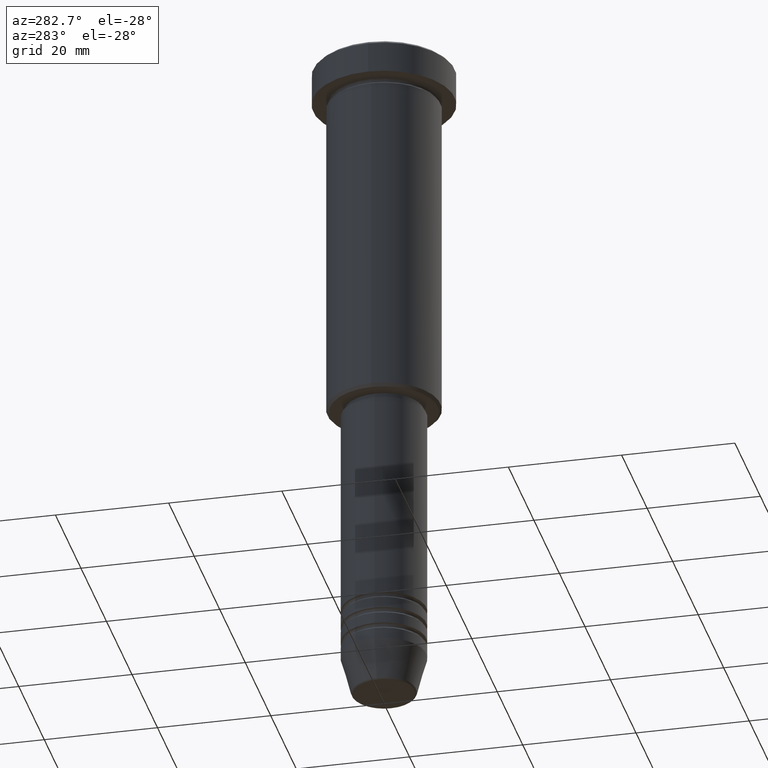
[diagram: clean part render]
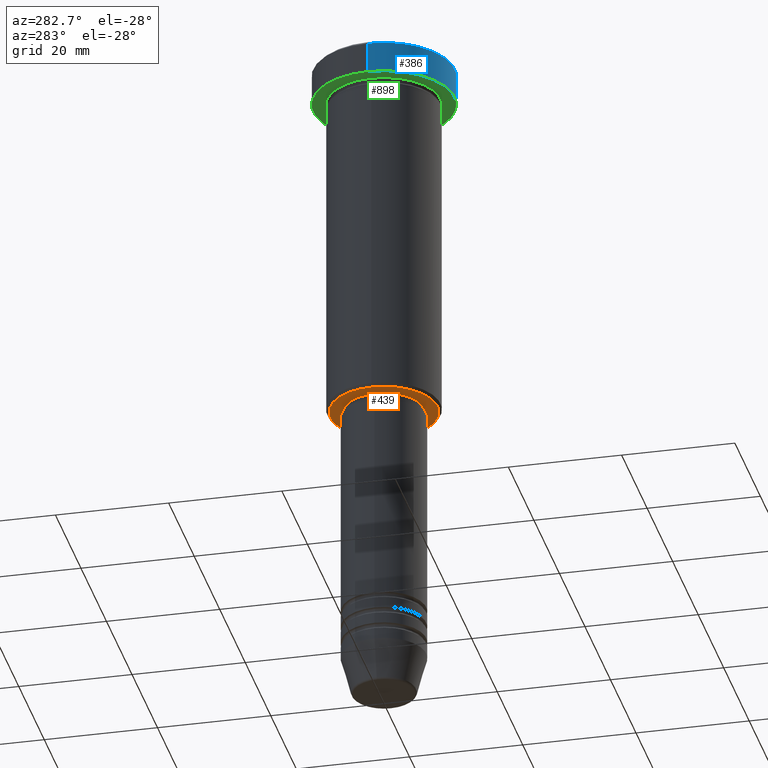
[diagram: same view with three faces highlighted in distinct colors, each labeled with its STEP entity id]
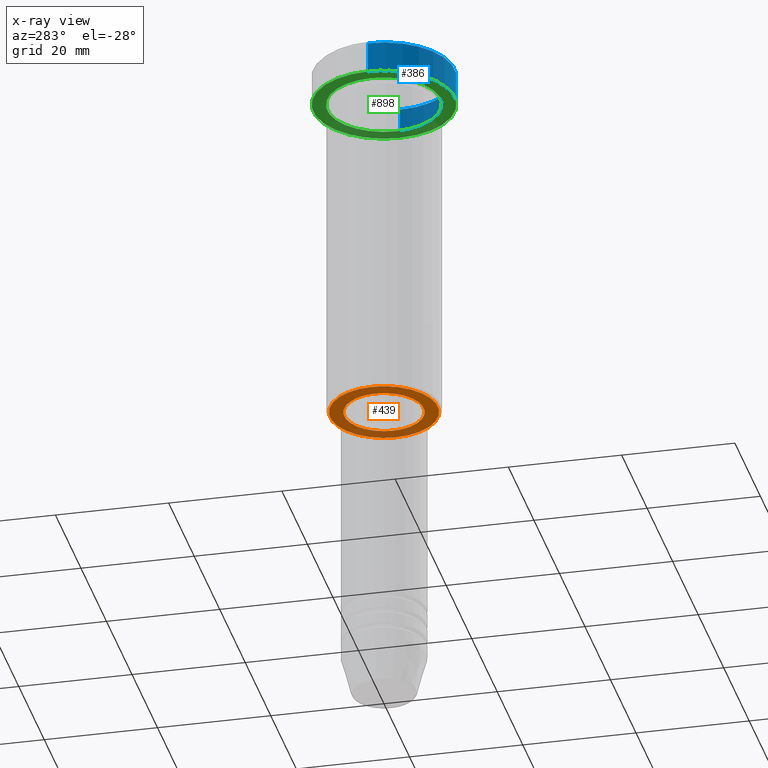
[diagram: x-ray of the same camera — body ghosted, the three highlighted faces saturated]
A machine part, auxiliary view with three faces highlighted in distinct colors.
The next image is the same camera in x-ray (body ghosted, the three faces saturated) — at least one of them is partly hidden behind the body in this view.
Their STEP definitions:

[orange] entity #439 — the highlighted planar face has unit normal (0, 0, -1).
#15 = CARTESIAN_POINT ( 'NONE',  ( 0.000000000000000000, 0.000000000000000000, -66.00000000000000000 ) ) ;
#64 = VERTEX_POINT ( 'NONE', #801 ) ;
#66 = CIRCLE ( 'NONE', #398, 9.499999999999980460 ) ;
#92 = PLANE ( 'NONE',  #177 ) ;
#118 = CARTESIAN_POINT ( 'NONE',  ( 0.000000000000000000, 0.000000000000000000, -66.00000000000000000 ) ) ;
#120 = AXIS2_PLACEMENT_3D ( 'NONE', #15, #741, #1107 ) ;
#141 = CIRCLE ( 'NONE', #525, 6.999999999999999112 ) ;
#177 = AXIS2_PLACEMENT_3D ( 'NONE', #740, #836, #372 ) ;
#180 = DIRECTION ( 'NONE',  ( 1.000000000000000000, 0.000000000000000000, 0.000000000000000000 ) ) ;
#272 = CARTESIAN_POINT ( 'NONE',  ( 0.000000000000000000, 0.000000000000000000, -66.00000000000000000 ) ) ;
#303 = EDGE_CURVE ( 'NONE', #1123, #64, #445, .T. ) ;
#323 = DIRECTION ( 'NONE',  ( 1.000000000000000000, 0.000000000000000000, 0.000000000000000000 ) ) ;
#325 = VERTEX_POINT ( 'NONE', #818 ) ;
#340 = EDGE_LOOP ( 'NONE', ( #497, #586 ) ) ;
#372 = DIRECTION ( 'NONE',  ( -1.000000000000000000, 0.000000000000000000, -0.000000000000000000 ) ) ;
#398 = AXIS2_PLACEMENT_3D ( 'NONE', #992, #1065, #973 ) ;
#439 = ADVANCED_FACE ( 'NONE', ( #461, #451 ), #92, .T. ) ;
#445 = CIRCLE ( 'NONE', #120, 9.499999999999980460 ) ;
#451 = FACE_BOUND ( 'NONE', #340, .T. ) ;
#461 = FACE_OUTER_BOUND ( 'NONE', #592, .T. ) ;
#491 = CIRCLE ( 'NONE', #1170, 6.999999999999999112 ) ;
#497 = ORIENTED_EDGE ( 'NONE', *, *, #529, .T. ) ;
#525 = AXIS2_PLACEMENT_3D ( 'NONE', #118, #1025, #323 ) ;
#529 = EDGE_CURVE ( 'NONE', #325, #761, #491, .T. ) ;
#586 = ORIENTED_EDGE ( 'NONE', *, *, #988, .T. ) ;
#592 = EDGE_LOOP ( 'NONE', ( #742, #694 ) ) ;
#619 = CARTESIAN_POINT ( 'NONE',  ( -6.999999999999999112, 8.572527594031472204E-16, -66.00000000000000000 ) ) ;
#626 = CARTESIAN_POINT ( 'NONE',  ( 9.499999999999980460, 0.000000000000000000, -66.00000000000000000 ) ) ;
#633 = DIRECTION ( 'NONE',  ( -0.000000000000000000, -0.000000000000000000, 1.000000000000000000 ) ) ;
#694 = ORIENTED_EDGE ( 'NONE', *, *, #1161, .T. ) ;
#740 = CARTESIAN_POINT ( 'NONE',  ( 0.000000000000000000, 10.00000000000000000, -66.00000000000000000 ) ) ;
#741 = DIRECTION ( 'NONE',  ( 0.000000000000000000, 0.000000000000000000, -1.000000000000000000 ) ) ;
#742 = ORIENTED_EDGE ( 'NONE', *, *, #303, .T. ) ;
#761 = VERTEX_POINT ( 'NONE', #619 ) ;
#801 = CARTESIAN_POINT ( 'NONE',  ( -9.499999999999980460, 1.194030629168668286E-15, -66.00000000000000000 ) ) ;
#818 = CARTESIAN_POINT ( 'NONE',  ( 6.999999999999999112, 0.000000000000000000, -66.00000000000000000 ) ) ;
#836 = DIRECTION ( 'NONE',  ( 0.000000000000000000, 0.000000000000000000, -1.000000000000000000 ) ) ;
#973 = DIRECTION ( 'NONE',  ( -1.000000000000000000, 0.000000000000000000, 0.000000000000000000 ) ) ;
#988 = EDGE_CURVE ( 'NONE', #761, #325, #141, .T. ) ;
#992 = CARTESIAN_POINT ( 'NONE',  ( 0.000000000000000000, 0.000000000000000000, -66.00000000000000000 ) ) ;
#1025 = DIRECTION ( 'NONE',  ( -0.000000000000000000, -0.000000000000000000, 1.000000000000000000 ) ) ;
#1065 = DIRECTION ( 'NONE',  ( 0.000000000000000000, 0.000000000000000000, -1.000000000000000000 ) ) ;
#1107 = DIRECTION ( 'NONE',  ( -1.000000000000000000, 0.000000000000000000, 0.000000000000000000 ) ) ;
#1123 = VERTEX_POINT ( 'NONE', #626 ) ;
#1161 = EDGE_CURVE ( 'NONE', #64, #1123, #66, .T. ) ;
#1170 = AXIS2_PLACEMENT_3D ( 'NONE', #272, #633, #180 ) ;

[blue] entity #386 — the highlighted cylindrical surface (partial cylindrical patch) has radius 12.5 mm, axis along (-0, -0, 1).
#5 = CARTESIAN_POINT ( 'NONE',  ( -12.50000000000000000, 1.530808498934191521E-15, -0.5000000000000056621 ) ) ;
#13 = DIRECTION ( 'NONE',  ( -0.000000000000000000, -0.000000000000000000, 1.000000000000000000 ) ) ;
#32 = LINE ( 'NONE', #867, #449 ) ;
#112 = CARTESIAN_POINT ( 'NONE',  ( 0.000000000000000000, 0.000000000000000000, -5.999999999999996447 ) ) ;
#156 = DIRECTION ( 'NONE',  ( -0.000000000000000000, -0.000000000000000000, 1.000000000000000000 ) ) ;
#231 = CARTESIAN_POINT ( 'NONE',  ( 12.50000000000000000, 0.000000000000000000, -5.999999999999996447 ) ) ;
#234 = CYLINDRICAL_SURFACE ( 'NONE', #653, 12.50000000000000000 ) ;
#273 = EDGE_CURVE ( 'NONE', #1121, #565, #731, .T. ) ;
#306 = DIRECTION ( 'NONE',  ( 1.000000000000000000, 0.000000000000000000, 0.000000000000000000 ) ) ;
#310 = EDGE_CURVE ( 'NONE', #565, #837, #981, .T. ) ;
#317 = EDGE_LOOP ( 'NONE', ( #647, #534, #518, #606 ) ) ;
#337 = AXIS2_PLACEMENT_3D ( 'NONE', #417, #1142, #409 ) ;
#386 = ADVANCED_FACE ( 'NONE', ( #706 ), #234, .T. ) ;
#409 = DIRECTION ( 'NONE',  ( 1.000000000000000000, 0.000000000000000000, 0.000000000000000000 ) ) ;
#417 = CARTESIAN_POINT ( 'NONE',  ( 0.000000000000000000, 0.000000000000000000, -0.5000000000000056621 ) ) ;
#449 = VECTOR ( 'NONE', #588, 1000.000000000000000 ) ;
#486 = DIRECTION ( 'NONE',  ( -0.000000000000000000, -0.000000000000000000, 1.000000000000000000 ) ) ;
#518 = ORIENTED_EDGE ( 'NONE', *, *, #310, .T. ) ;
#534 = ORIENTED_EDGE ( 'NONE', *, *, #273, .T. ) ;
#565 = VERTEX_POINT ( 'NONE', #231 ) ;
#588 = DIRECTION ( 'NONE',  ( -0.000000000000000000, -0.000000000000000000, 1.000000000000000000 ) ) ;
#606 = ORIENTED_EDGE ( 'NONE', *, *, #664, .T. ) ;
#620 = AXIS2_PLACEMENT_3D ( 'NONE', #112, #486, #306 ) ;
#634 = CARTESIAN_POINT ( 'NONE',  ( 0.000000000000000000, 0.000000000000000000, 0.000000000000000000 ) ) ;
#647 = ORIENTED_EDGE ( 'NONE', *, *, #1070, .F. ) ;
#653 = AXIS2_PLACEMENT_3D ( 'NONE', #634, #13, #658 ) ;
#658 = DIRECTION ( 'NONE',  ( 1.000000000000000000, 0.000000000000000000, 0.000000000000000000 ) ) ;
#664 = EDGE_CURVE ( 'NONE', #837, #918, #844, .T. ) ;
#703 = CARTESIAN_POINT ( 'NONE',  ( -12.50000000000000000, 1.530808498934191521E-15, -5.999999999999996447 ) ) ;
#706 = FACE_OUTER_BOUND ( 'NONE', #317, .T. ) ;
#731 = CIRCLE ( 'NONE', #620, 12.50000000000000000 ) ;
#837 = VERTEX_POINT ( 'NONE', #1159 ) ;
#844 = CIRCLE ( 'NONE', #337, 12.50000000000000000 ) ;
#867 = CARTESIAN_POINT ( 'NONE',  ( -12.50000000000000000, 1.530808498934191521E-15, 0.000000000000000000 ) ) ;
#918 = VERTEX_POINT ( 'NONE', #5 ) ;
#958 = CARTESIAN_POINT ( 'NONE',  ( 12.50000000000000000, 0.000000000000000000, 0.000000000000000000 ) ) ;
#981 = LINE ( 'NONE', #958, #1092 ) ;
#1070 = EDGE_CURVE ( 'NONE', #1121, #918, #32, .T. ) ;
#1092 = VECTOR ( 'NONE', #156, 1000.000000000000000 ) ;
#1121 = VERTEX_POINT ( 'NONE', #703 ) ;
#1142 = DIRECTION ( 'NONE',  ( 0.000000000000000000, 0.000000000000000000, -1.000000000000000000 ) ) ;
#1159 = CARTESIAN_POINT ( 'NONE',  ( 12.50000000000000000, 0.000000000000000000, -0.5000000000000056621 ) ) ;

[green] entity #898 — the highlighted planar face has unit normal (0, 0, -1).
#112 = CARTESIAN_POINT ( 'NONE',  ( 0.000000000000000000, 0.000000000000000000, -5.999999999999996447 ) ) ;
#126 = EDGE_LOOP ( 'NONE', ( #382, #991 ) ) ;
#187 = VERTEX_POINT ( 'NONE', #1068 ) ;
#215 = CARTESIAN_POINT ( 'NONE',  ( 0.000000000000000000, 0.000000000000000000, -5.999999999999996447 ) ) ;
#231 = CARTESIAN_POINT ( 'NONE',  ( 12.50000000000000000, 0.000000000000000000, -5.999999999999996447 ) ) ;
#273 = EDGE_CURVE ( 'NONE', #1121, #565, #731, .T. ) ;
#289 = CARTESIAN_POINT ( 'NONE',  ( 0.000000000000000000, 12.50000000000000000, -5.999999999999996447 ) ) ;
#293 = CARTESIAN_POINT ( 'NONE',  ( 0.000000000000000000, 0.000000000000000000, -5.999999999999996447 ) ) ;
#306 = DIRECTION ( 'NONE',  ( 1.000000000000000000, 0.000000000000000000, 0.000000000000000000 ) ) ;
#312 = DIRECTION ( 'NONE',  ( -1.000000000000000000, 0.000000000000000000, 0.000000000000000000 ) ) ;
#382 = ORIENTED_EDGE ( 'NONE', *, *, #1006, .T. ) ;
#400 = DIRECTION ( 'NONE',  ( -0.000000000000000000, -0.000000000000000000, 1.000000000000000000 ) ) ;
#446 = EDGE_LOOP ( 'NONE', ( #995, #1024 ) ) ;
#477 = FACE_OUTER_BOUND ( 'NONE', #446, .T. ) ;
#486 = DIRECTION ( 'NONE',  ( -0.000000000000000000, -0.000000000000000000, 1.000000000000000000 ) ) ;
#536 = PLANE ( 'NONE',  #657 ) ;
#565 = VERTEX_POINT ( 'NONE', #231 ) ;
#572 = DIRECTION ( 'NONE',  ( 1.000000000000000000, 0.000000000000000000, 0.000000000000000000 ) ) ;
#620 = AXIS2_PLACEMENT_3D ( 'NONE', #112, #486, #306 ) ;
#643 = EDGE_CURVE ( 'NONE', #565, #1121, #1080, .T. ) ;
#645 = DIRECTION ( 'NONE',  ( -1.000000000000000000, 0.000000000000000000, 0.000000000000000000 ) ) ;
#657 = AXIS2_PLACEMENT_3D ( 'NONE', #289, #830, #1099 ) ;
#700 = VERTEX_POINT ( 'NONE', #895 ) ;
#703 = CARTESIAN_POINT ( 'NONE',  ( -12.50000000000000000, 1.530808498934191521E-15, -5.999999999999996447 ) ) ;
#717 = CIRCLE ( 'NONE', #1171, 10.00000000000000000 ) ;
#731 = CIRCLE ( 'NONE', #620, 12.50000000000000000 ) ;
#772 = AXIS2_PLACEMENT_3D ( 'NONE', #293, #936, #312 ) ;
#808 = CIRCLE ( 'NONE', #772, 10.00000000000000000 ) ;
#817 = FACE_BOUND ( 'NONE', #126, .T. ) ;
#830 = DIRECTION ( 'NONE',  ( 0.000000000000000000, 0.000000000000000000, -1.000000000000000000 ) ) ;
#888 = EDGE_CURVE ( 'NONE', #700, #187, #717, .T. ) ;
#895 = CARTESIAN_POINT ( 'NONE',  ( 10.00000000000000000, 1.224646799147353256E-15, -5.999999999999996447 ) ) ;
#898 = ADVANCED_FACE ( 'NONE', ( #817, #477 ), #536, .T. ) ;
#936 = DIRECTION ( 'NONE',  ( -0.000000000000000000, -0.000000000000000000, 1.000000000000000000 ) ) ;
#991 = ORIENTED_EDGE ( 'NONE', *, *, #888, .T. ) ;
#995 = ORIENTED_EDGE ( 'NONE', *, *, #643, .F. ) ;
#1006 = EDGE_CURVE ( 'NONE', #187, #700, #808, .T. ) ;
#1024 = ORIENTED_EDGE ( 'NONE', *, *, #273, .F. ) ;
#1041 = AXIS2_PLACEMENT_3D ( 'NONE', #215, #400, #572 ) ;
#1068 = CARTESIAN_POINT ( 'NONE',  ( -10.00000000000000000, 0.000000000000000000, -5.999999999999996447 ) ) ;
#1080 = CIRCLE ( 'NONE', #1041, 12.50000000000000000 ) ;
#1086 = DIRECTION ( 'NONE',  ( -0.000000000000000000, -0.000000000000000000, 1.000000000000000000 ) ) ;
#1099 = DIRECTION ( 'NONE',  ( -1.000000000000000000, 0.000000000000000000, -0.000000000000000000 ) ) ;
#1105 = CARTESIAN_POINT ( 'NONE',  ( 0.000000000000000000, 0.000000000000000000, -5.999999999999996447 ) ) ;
#1121 = VERTEX_POINT ( 'NONE', #703 ) ;
#1171 = AXIS2_PLACEMENT_3D ( 'NONE', #1105, #1086, #645 ) ;